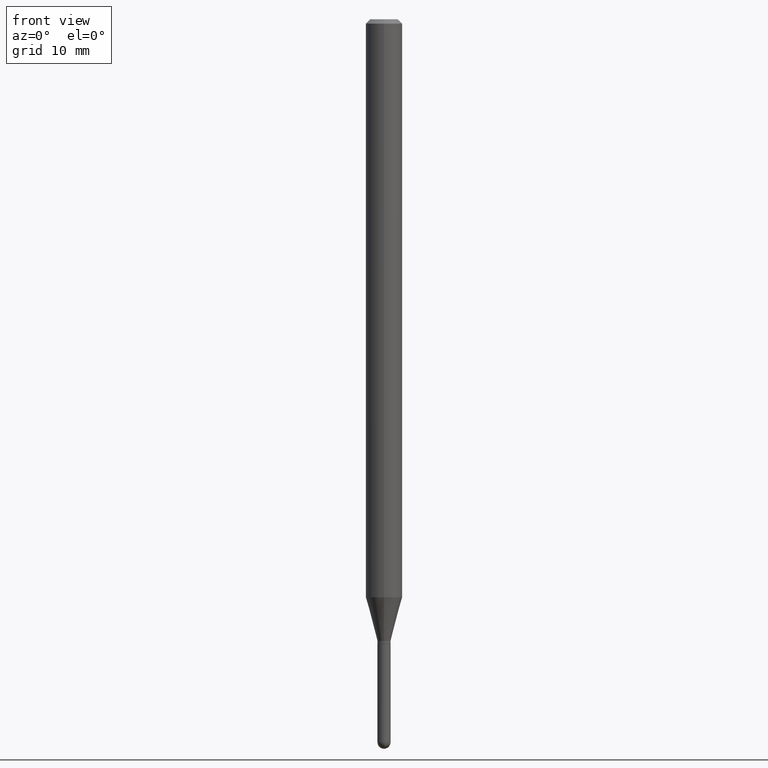
[diagram: clean part render]
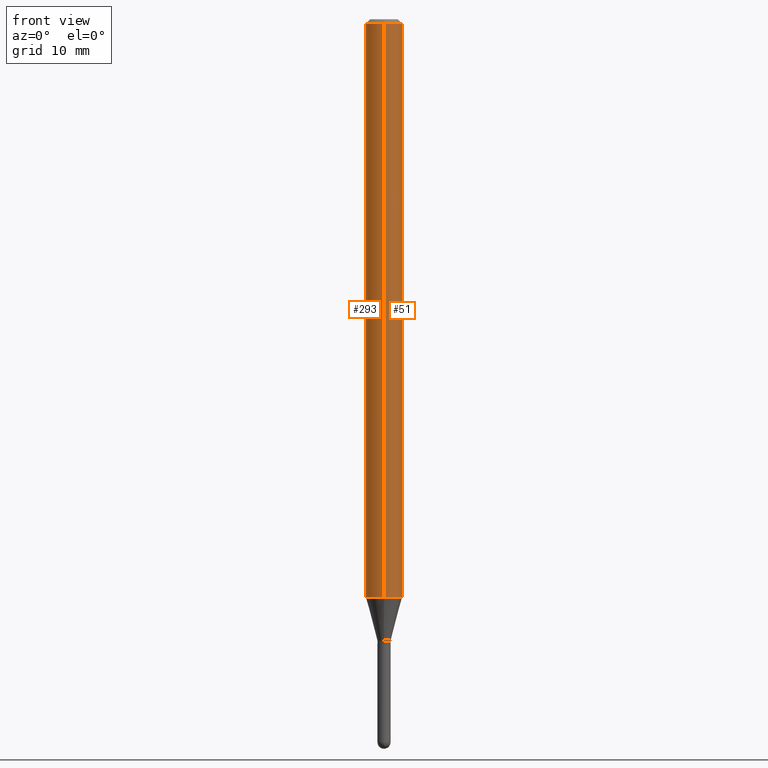
[diagram: same view with one multi-face feature highlighted, each face labeled with its STEP entity id]
A machine part, front view. The highlighted faces form ONE feature: a constant-radius fillet chain: 2 tangent blend faces with common blend radius 1.5875 mm. The faces share edges in the B-rep.
Their STEP definitions:
[1] entity #293 (Cylinder):
#14 = CIRCLE ( 'NONE', #86, 0.06250000000000000000 ) ;
#19 = CARTESIAN_POINT ( 'NONE',  ( -4.364351673553434010E-16, -0.06250000000000693889, -1.980717967697244175 ) ) ;
#28 = ORIENTED_EDGE ( 'NONE', *, *, #414, .F. ) ;
#35 = DIRECTION ( 'NONE',  ( -6.982962677686265922E-15, -1.000000000000000000, 4.370956789862821150E-15 ) ) ;
#59 = VERTEX_POINT ( 'NONE', #434 ) ;
#68 = VECTOR ( 'NONE', #284, 39.37007874015748143 ) ;
#79 = ORIENTED_EDGE ( 'NONE', *, *, #302, .F. ) ;
#84 = EDGE_CURVE ( 'NONE', #237, #356, #383, .T. ) ;
#86 = AXIS2_PLACEMENT_3D ( 'NONE', #480, #283, #129 ) ;
#91 = LINE ( 'NONE', #435, #192 ) ;
#129 = DIRECTION ( 'NONE',  ( -6.982962677686265922E-15, -1.000000000000000000, 3.483106191921935554E-15 ) ) ;
#135 = EDGE_LOOP ( 'NONE', ( #28, #482, #505, #79 ) ) ;
#142 = VERTEX_POINT ( 'NONE', #159 ) ;
#159 = CARTESIAN_POINT ( 'NONE',  ( 4.440892098501114269E-16, 0.06249999999999995143, -0.01500000000000022669 ) ) ;
#187 = CARTESIAN_POINT ( 'NONE',  ( 4.440892098501108353E-16, 0.06249999999999306804, -1.980717967697244841 ) ) ;
#190 = FACE_OUTER_BOUND ( 'NONE', #135, .T. ) ;
#192 = VECTOR ( 'NONE', #405, 39.37007874015748143 ) ;
#200 = DIRECTION ( 'NONE',  ( -2.445430951756154079E-29, 3.491535548539988804E-15, 1.000000000000000000 ) ) ;
#237 = VERTEX_POINT ( 'NONE', #187 ) ;
#245 = LINE ( 'NONE', #469, #68 ) ;
#269 = DIRECTION ( 'NONE',  ( -6.982962677686265922E-15, -1.000000000000000000, 3.491535548539988804E-15 ) ) ;
#280 = DIRECTION ( 'NONE',  ( -2.445430951756154079E-29, 3.491535548539988804E-15, 1.000000000000000000 ) ) ;
#283 = DIRECTION ( 'NONE',  ( -2.445430951756154079E-29, 3.491535548539988804E-15, 1.000000000000000000 ) ) ;
#284 = DIRECTION ( 'NONE',  ( -2.445430951756154079E-29, 3.491535548539988804E-15, 1.000000000000000000 ) ) ;
#293 = ADVANCED_FACE ( 'NONE', ( #190 ), #462, .T. ) ;
#302 = EDGE_CURVE ( 'NONE', #142, #59, #14, .T. ) ;
#306 = AXIS2_PLACEMENT_3D ( 'NONE', #497, #280, #269 ) ;
#319 = CARTESIAN_POINT ( 'NONE',  ( 4.843709024906387274E-29, -6.915747195846810751E-15, -1.980717967697244397 ) ) ;
#323 = EDGE_CURVE ( 'NONE', #356, #59, #91, .T. ) ;
#356 = VERTEX_POINT ( 'NONE', #19 ) ;
#370 = AXIS2_PLACEMENT_3D ( 'NONE', #319, #200, #35 ) ;
#383 = CIRCLE ( 'NONE', #370, 0.06250000000000000000 ) ;
#405 = DIRECTION ( 'NONE',  ( -2.445430951756154079E-29, 3.491535548539988804E-15, 1.000000000000000000 ) ) ;
#414 = EDGE_CURVE ( 'NONE', #237, #142, #245, .T. ) ;
#434 = CARTESIAN_POINT ( 'NONE',  ( -4.364351673553912750E-16, -0.06250000000000005551, -0.01499999999999979128 ) ) ;
#435 = CARTESIAN_POINT ( 'NONE',  ( -4.364351673553916201E-16, -0.06250000000000000000, 2.182209717837493003E-16 ) ) ;
#462 = CYLINDRICAL_SURFACE ( 'NONE', #306, 0.06250000000000000000 ) ;
#469 = CARTESIAN_POINT ( 'NONE',  ( 4.440892098500625669E-16, 0.06250000000000000000, -2.182209717837493003E-16 ) ) ;
#480 = CARTESIAN_POINT ( 'NONE',  ( 3.668146427634232888E-31, -5.237303322809986509E-17, -0.01500000000000000812 ) ) ;
#482 = ORIENTED_EDGE ( 'NONE', *, *, #84, .T. ) ;
#497 = CARTESIAN_POINT ( 'NONE',  ( 0.000000000000000000, 0.000000000000000000, 0.000000000000000000 ) ) ;
#505 = ORIENTED_EDGE ( 'NONE', *, *, #323, .T. ) ;
[2] entity #51 (Cylinder):
#3 = DIRECTION ( 'NONE',  ( -6.982962677686265922E-15, -1.000000000000000000, 3.491535548539988804E-15 ) ) ;
#10 = EDGE_CURVE ( 'NONE', #356, #237, #53, .T. ) ;
#19 = CARTESIAN_POINT ( 'NONE',  ( -4.364351673553434010E-16, -0.06250000000000693889, -1.980717967697244175 ) ) ;
#51 = ADVANCED_FACE ( 'NONE', ( #114 ), #254, .T. ) ;
#53 = CIRCLE ( 'NONE', #445, 0.06250000000000000000 ) ;
#59 = VERTEX_POINT ( 'NONE', #434 ) ;
#68 = VECTOR ( 'NONE', #284, 39.37007874015748143 ) ;
#91 = LINE ( 'NONE', #435, #192 ) ;
#114 = FACE_OUTER_BOUND ( 'NONE', #211, .T. ) ;
#142 = VERTEX_POINT ( 'NONE', #159 ) ;
#147 = CARTESIAN_POINT ( 'NONE',  ( 4.843709024906387274E-29, -6.915747195846810751E-15, -1.980717967697244397 ) ) ;
#149 = AXIS2_PLACEMENT_3D ( 'NONE', #404, #197, #3 ) ;
#159 = CARTESIAN_POINT ( 'NONE',  ( 4.440892098501114269E-16, 0.06249999999999995143, -0.01500000000000022669 ) ) ;
#187 = CARTESIAN_POINT ( 'NONE',  ( 4.440892098501108353E-16, 0.06249999999999306804, -1.980717967697244841 ) ) ;
#192 = VECTOR ( 'NONE', #405, 39.37007874015748143 ) ;
#197 = DIRECTION ( 'NONE',  ( -2.445430951756154079E-29, 3.491535548539988804E-15, 1.000000000000000000 ) ) ;
#202 = ORIENTED_EDGE ( 'NONE', *, *, #323, .F. ) ;
#211 = EDGE_LOOP ( 'NONE', ( #327, #456, #218, #202 ) ) ;
#218 = ORIENTED_EDGE ( 'NONE', *, *, #452, .F. ) ;
#237 = VERTEX_POINT ( 'NONE', #187 ) ;
#245 = LINE ( 'NONE', #469, #68 ) ;
#249 = DIRECTION ( 'NONE',  ( -2.445430951756154079E-29, 3.491535548539988804E-15, 1.000000000000000000 ) ) ;
#250 = CIRCLE ( 'NONE', #353, 0.06250000000000000000 ) ;
#254 = CYLINDRICAL_SURFACE ( 'NONE', #149, 0.06250000000000000000 ) ;
#274 = DIRECTION ( 'NONE',  ( -6.982962677686265922E-15, -1.000000000000000000, 3.483106191921935554E-15 ) ) ;
#282 = DIRECTION ( 'NONE',  ( -6.982962677686265922E-15, -1.000000000000000000, 4.370956789862821150E-15 ) ) ;
#284 = DIRECTION ( 'NONE',  ( -2.445430951756154079E-29, 3.491535548539988804E-15, 1.000000000000000000 ) ) ;
#323 = EDGE_CURVE ( 'NONE', #356, #59, #91, .T. ) ;
#327 = ORIENTED_EDGE ( 'NONE', *, *, #10, .T. ) ;
#353 = AXIS2_PLACEMENT_3D ( 'NONE', #506, #359, #274 ) ;
#356 = VERTEX_POINT ( 'NONE', #19 ) ;
#359 = DIRECTION ( 'NONE',  ( -2.445430951756154079E-29, 3.491535548539988804E-15, 1.000000000000000000 ) ) ;
#404 = CARTESIAN_POINT ( 'NONE',  ( 0.000000000000000000, 0.000000000000000000, 0.000000000000000000 ) ) ;
#405 = DIRECTION ( 'NONE',  ( -2.445430951756154079E-29, 3.491535548539988804E-15, 1.000000000000000000 ) ) ;
#414 = EDGE_CURVE ( 'NONE', #237, #142, #245, .T. ) ;
#434 = CARTESIAN_POINT ( 'NONE',  ( -4.364351673553912750E-16, -0.06250000000000005551, -0.01499999999999979128 ) ) ;
#435 = CARTESIAN_POINT ( 'NONE',  ( -4.364351673553916201E-16, -0.06250000000000000000, 2.182209717837493003E-16 ) ) ;
#445 = AXIS2_PLACEMENT_3D ( 'NONE', #147, #249, #282 ) ;
#452 = EDGE_CURVE ( 'NONE', #59, #142, #250, .T. ) ;
#456 = ORIENTED_EDGE ( 'NONE', *, *, #414, .T. ) ;
#469 = CARTESIAN_POINT ( 'NONE',  ( 4.440892098500625669E-16, 0.06250000000000000000, -2.182209717837493003E-16 ) ) ;
#506 = CARTESIAN_POINT ( 'NONE',  ( 3.668146427634232888E-31, -5.237303322809986509E-17, -0.01500000000000000812 ) ) ;